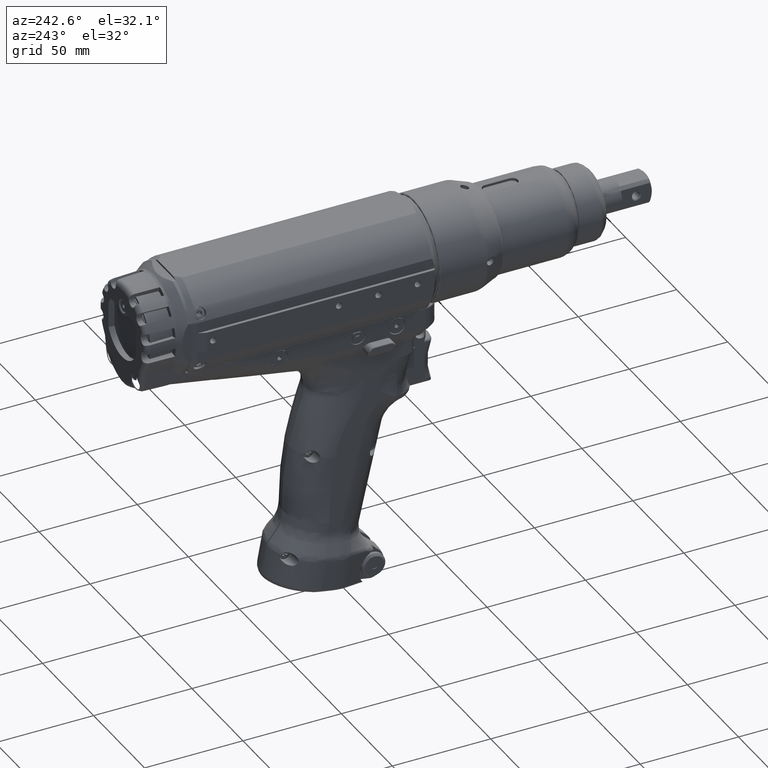
[diagram: clean part render]
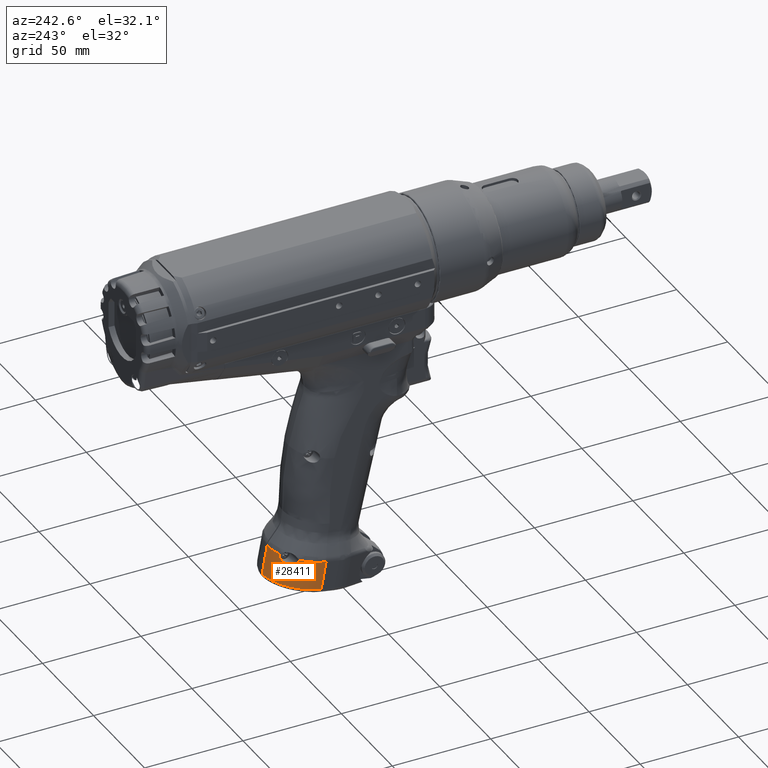
[diagram: same view with one face highlighted and labeled with its STEP entity id]
A machine part, auxiliary view. The second image highlights one B-rep face of the part: STEP entity #28411.
In plain terms, the highlighted cylindrical surface (partial cylindrical patch) has radius 20 mm, axis along (-0, -0.1736, 0.9848).
Its self-contained STEP definition (entity closure, byte-faithful):
#520=CYLINDRICAL_SURFACE('',#30795,20.0000000000148);
#1801=LINE('',#50949,#3528);
#1802=LINE('',#50951,#3529);
#2118=LINE('',#55126,#3845);
#3528=VECTOR('',#34477,10.);
#3529=VECTOR('',#34478,10.);
#3845=VECTOR('',#35842,10.);
#6295=FACE_OUTER_BOUND('',#7970,.T.);
#7970=EDGE_LOOP('',(#24027,#24028,#24029,#24030,#24031,#24032,#24033,#24034,
#24035,#24036));
#9320=CIRCLE('',#30588,20.0196581365117);
#9361=CIRCLE('',#30692,19.9999999999947);
#9369=CIRCLE('',#30725,2.46360441594832);
#10309=B_SPLINE_CURVE_WITH_KNOTS('',3,(#54586,#54587,#54588,#54589,#54590,
#54591,#54592),.UNSPECIFIED.,.F.,.F.,(4,1,1,1,4),(-6.22190471991814E-9,
7.11157267544012,14.2193277826116,21.3205622149425,26.5479907113652),
 .UNSPECIFIED.);
#10461=B_SPLINE_CURVE_WITH_KNOTS('',3,(#62251,#62252,#62253,#62254,#62255,
#62256,#62257,#62258,#62259,#62260,#62261,#62262,#62263,#62264),
 .UNSPECIFIED.,.F.,.F.,(4,2,2,2,2,2,4),(18.204317752021,19.3816624082443,
23.2579948898932,27.1343273715421,29.0724936123665,30.0415767327787,31.0106598531909),
 .UNSPECIFIED.);
#10499=B_SPLINE_CURVE_WITH_KNOTS('',3,(#65310,#65311,#65312,#65313,#65314,
#65315,#65316,#65317),.UNSPECIFIED.,.F.,.F.,(4,2,2,4),(3.53634865147476,
3.58792545413879,3.64664171666363,3.65805592977152),.UNSPECIFIED.);
#10500=B_SPLINE_CURVE_WITH_KNOTS('',3,(#65321,#65322,#65323,#65324,#65325,
#65326,#65327,#65328,#65329,#65330,#65331,#65332,#65333,#65334,#65335,#65336,
#65337,#65338,#65339,#65340,#65341,#65342,#65343),.UNSPECIFIED.,.F.,.F.,
(4,3,2,2,2,2,2,2,2,2,4),(2.34082247032961,2.3919503027592,2.48838343926638,
2.58481657577356,2.7181539801504,2.85149138452724,3.16099215680819,3.31574254294867,
3.47049292908914,3.52920919161397,3.53634865147476),.UNSPECIFIED.);
#12247=VERTEX_POINT('',#50935);
#12248=VERTEX_POINT('',#50948);
#12249=VERTEX_POINT('',#50950);
#12733=VERTEX_POINT('',#54550);
#12735=VERTEX_POINT('',#54584);
#12759=VERTEX_POINT('',#55124);
#12959=VERTEX_POINT('',#62221);
#12960=VERTEX_POINT('',#62222);
#12997=VERTEX_POINT('',#65307);
#12998=VERTEX_POINT('',#65309);
#15732=EDGE_CURVE('',#12247,#12248,#1801,.T.);
#15733=EDGE_CURVE('',#12248,#12249,#1802,.T.);
#16414=EDGE_CURVE('',#12733,#12247,#9320,.T.);
#16416=EDGE_CURVE('',#12735,#12733,#10309,.T.);
#16449=EDGE_CURVE('',#12759,#12735,#2118,.T.);
#16748=EDGE_CURVE('',#12960,#12759,#10461,.T.);
#16751=EDGE_CURVE('',#12249,#12959,#9361,.T.);
#16829=EDGE_CURVE('',#12960,#12997,#9369,.T.);
#16830=EDGE_CURVE('',#12998,#12959,#10499,.T.);
#16833=EDGE_CURVE('',#12997,#12998,#10500,.T.);
#24027=ORIENTED_EDGE('',*,*,#16833,.T.);
#24028=ORIENTED_EDGE('',*,*,#16830,.T.);
#24029=ORIENTED_EDGE('',*,*,#16751,.F.);
#24030=ORIENTED_EDGE('',*,*,#15733,.F.);
#24031=ORIENTED_EDGE('',*,*,#15732,.F.);
#24032=ORIENTED_EDGE('',*,*,#16414,.F.);
#24033=ORIENTED_EDGE('',*,*,#16416,.F.);
#24034=ORIENTED_EDGE('',*,*,#16449,.F.);
#24035=ORIENTED_EDGE('',*,*,#16748,.F.);
#24036=ORIENTED_EDGE('',*,*,#16829,.T.);
#28411=ADVANCED_FACE('',(#6295),#520,.T.);
#30588=AXIS2_PLACEMENT_3D('',#54561,#35800,#35801);
#30692=AXIS2_PLACEMENT_3D('',#62310,#36136,#36137);
#30725=AXIS2_PLACEMENT_3D('',#65308,#36234,#36235);
#30795=AXIS2_PLACEMENT_3D('',#67514,#36433,#36434);
#34477=DIRECTION('',(-3.09771669345662E-6,-0.173648223432203,0.984807744937683));
#34478=DIRECTION('',(3.74229273949814E-9,-0.173648177611656,0.984807753021954));
#35800=DIRECTION('center_axis',(-0.0314069828656533,0.173463118996506,-0.984339447434309));
#35801=DIRECTION('ref_axis',(-0.0149882941898975,0.984632810809403,0.173993042719679));
#35842=DIRECTION('',(5.42094089277341E-15,0.173648177666956,-0.984807753012203));
#36136=DIRECTION('center_axis',(2.93158424929176E-9,-0.173648200392972,
0.984807749004994));
#36137=DIRECTION('ref_axis',(-0.444337388045809,0.882249400393057,0.155564395318205));
#36234=DIRECTION('center_axis',(0.793010764590804,-0.600290553736258,-0.103851713217093));
#36235=DIRECTION('ref_axis',(-0.595194162353099,-0.79978199750699,0.078055528724893));
#36433=DIRECTION('center_axis',(-9.89006580476156E-14,-0.173648177667,0.984807753012196));
#36434=DIRECTION('ref_axis',(-0.713273835487287,0.69023744029969,0.121707483819963));
#50935=CARTESIAN_POINT('',(-0.299999769774573,88.5978533931343,-150.921511496123));
#50948=CARTESIAN_POINT('',(-0.29999995221977,88.5875749510545,-150.863219570182));
#50949=CARTESIAN_POINT('',(-0.299999768862284,88.5978533931728,-150.921511496261));
#50950=CARTESIAN_POINT('',(-0.299999897208065,86.0349466176605,-136.386544906012));
#50951=CARTESIAN_POINT('',(-0.29999995221977,88.5875749510544,-150.863219570182));
#54550=CARTESIAN_POINT('',(-1.92346855652392,88.4999096507592,-150.886971958665));
#54561=CARTESIAN_POINT('Origin',(6.07568689311846E-5,68.8858411307759,-154.40479272964));
#54584=CARTESIAN_POINT('',(-19.9999999999985,68.7964011842434,-153.784347302092));
#54586=CARTESIAN_POINT('Ctrl Pts',(-19.9999999999985,68.7964011842434,-153.784347302092));
#54587=CARTESIAN_POINT('Ctrl Pts',(-20.0015966372463,71.3902655929105,-153.326928068214));
#54588=CARTESIAN_POINT('Ctrl Pts',(-18.9460739121555,76.5813148232366,-152.445291487714));
#54589=CARTESIAN_POINT('Ctrl Pts',(-14.4510610482149,83.1834099321747,-151.424615722304));
#54590=CARTESIAN_POINT('Ctrl Pts',(-8.32826738068652,87.1979121970762,-150.912150623057));
#54591=CARTESIAN_POINT('Ctrl Pts',(-3.84935249370142,88.3057400254995,-150.859748675293));
#54592=CARTESIAN_POINT('Ctrl Pts',(-1.92346855568109,88.4999096508438,-150.886971958677));
#55124=CARTESIAN_POINT('',(-19.9999999999986,66.3410075075259,-139.859117783322));
#55126=CARTESIAN_POINT('',(-19.9999999999986,66.3410075075259,-139.859117783322));
#62221=CARTESIAN_POINT('',(-8.88674571903404,83.985995829514,-136.747830224391));
#62222=CARTESIAN_POINT('',(-15.9375588687646,78.2402513719597,-137.760959984143));
#62251=CARTESIAN_POINT('Ctrl Pts',(-15.9375588687646,78.2402513719597,-137.760959984143));
#62252=CARTESIAN_POINT('Ctrl Pts',(-16.1777605379761,77.9282645359822,-137.815971682595));
#62253=CARTESIAN_POINT('Ctrl Pts',(-16.4085289513359,77.6092232629603,-137.87222726865));
#62254=CARTESIAN_POINT('Ctrl Pts',(-17.3567006774221,76.2117481552927,-138.11863984219));
#62255=CARTESIAN_POINT('Ctrl Pts',(-17.976694575597,75.069446335269,-138.320058478843));
#62256=CARTESIAN_POINT('Ctrl Pts',(-18.9785814049454,72.6874031926008,-138.740076965541));
#62257=CARTESIAN_POINT('Ctrl Pts',(-19.3604175317482,71.4479031216446,-138.958634276403));
#62258=CARTESIAN_POINT('Ctrl Pts',(-19.743374939977,69.5513841679421,-139.293041745912));
#62259=CARTESIAN_POINT('Ctrl Pts',(-19.8395468685749,68.9130796200986,-139.405592062437));
#62260=CARTESIAN_POINT('Ctrl Pts',(-19.9357732560576,67.9507826029507,-139.575270994222));
#62261=CARTESIAN_POINT('Ctrl Pts',(-19.959846760122,67.6294210769262,-139.631935703216));
#62262=CARTESIAN_POINT('Ctrl Pts',(-19.9919678897407,66.9855370343859,-139.745469835132));
#62263=CARTESIAN_POINT('Ctrl Pts',(-19.9999995141943,66.6633134254282,-139.802286552589));
#62264=CARTESIAN_POINT('Ctrl Pts',(-19.9999999999986,66.3410075075259,-139.859117783322));
#62310=CARTESIAN_POINT('Origin',(1.10774198936695E-12,66.3410075782889,
-139.859118184574));
#65307=CARTESIAN_POINT('',(-15.9657156323605,78.2346777297236,-137.943760421995));
#65308=CARTESIAN_POINT('Origin',(-14.4993925214864,80.2050243879211,-138.136058386123));
#65309=CARTESIAN_POINT('',(-8.81128171351233,84.2346775323796,-137.943760575436));
#65310=CARTESIAN_POINT('Ctrl Pts',(-8.81128171351234,84.2346775323796,-137.943760575394));
#65311=CARTESIAN_POINT('Ctrl Pts',(-8.75032631469201,84.2346775323747,-137.771490606694));
#65312=CARTESIAN_POINT('Ctrl Pts',(-8.71779788708376,84.2189548507245,-137.592126826275));
#65313=CARTESIAN_POINT('Ctrl Pts',(-8.7177978870838,84.1551142181266,-137.23006860727));
#65314=CARTESIAN_POINT('Ctrl Pts',(-8.76059712974739,84.0992291674671,-137.031667106607));
#65315=CARTESIAN_POINT('Ctrl Pts',(-8.85315656373196,84.0149117169113,-136.816055968167));
#65316=CARTESIAN_POINT('Ctrl Pts',(-8.86943512293767,84.0006661001159,-136.781580937676));
#65317=CARTESIAN_POINT('Ctrl Pts',(-8.88674745519374,83.985995883523,-136.747831091495));
#65321=CARTESIAN_POINT('Ctrl Pts',(-15.965715776513,78.2346775323803,-137.94376040311));
#65322=CARTESIAN_POINT('Ctrl Pts',(-15.9889167991206,78.2346775222053,-138.120851835003));
#65323=CARTESIAN_POINT('Ctrl Pts',(-15.9999999999975,78.2506600902455,-138.296868155908));
#65324=CARTESIAN_POINT('Ctrl Pts',(-15.9999999999975,78.2802542733437,-138.46470510848));
#65325=CARTESIAN_POINT('Ctrl Pts',(-15.9999999999975,78.3360724014144,-138.781265443412));
#65326=CARTESIAN_POINT('Ctrl Pts',(-15.9589314182289,78.449778470397,-139.107493909969));
#65327=CARTESIAN_POINT('Ctrl Pts',(-15.7936489393898,78.7711277986827,-139.687566619762));
#65328=CARTESIAN_POINT('Ctrl Pts',(-15.6692056291313,78.9781846007314,-139.941670181718));
#65329=CARTESIAN_POINT('Ctrl Pts',(-15.3328915668153,79.4816057769283,-140.410781621146));
#65330=CARTESIAN_POINT('Ctrl Pts',(-15.075400091516,79.8279926008958,-140.619829610294));
#65331=CARTESIAN_POINT('Ctrl Pts',(-14.4882269462577,80.5286664781743,-140.883429753227));
#65332=CARTESIAN_POINT('Ctrl Pts',(-14.1582830283464,80.8823038736046,-140.93912289721));
#65333=CARTESIAN_POINT('Ctrl Pts',(-13.101852303936,81.9131761549843,-140.953549903533));
#65334=CARTESIAN_POINT('Ctrl Pts',(-12.2543432435958,82.5739449419424,-140.708275056165));
#65335=CARTESIAN_POINT('Ctrl Pts',(-10.9993044976134,83.3518704568055,-140.09471679477));
#65336=CARTESIAN_POINT('Ctrl Pts',(-10.5866531190445,83.5756349428975,-139.850424204311));
#65337=CARTESIAN_POINT('Ctrl Pts',(-9.80914769839672,83.9427671504381,-139.278566382468));
#65338=CARTESIAN_POINT('Ctrl Pts',(-9.44060480915722,84.0890285943691,-138.9579047686));
#65339=CARTESIAN_POINT('Ctrl Pts',(-9.02614094454492,84.2053649303794,-138.391338986803));
#65340=CARTESIAN_POINT('Ctrl Pts',(-8.91558663968431,84.2292384252944,-138.2086676616));
#65341=CARTESIAN_POINT('Ctrl Pts',(-8.82866910014593,84.2343929726787,-137.991328853768));
#65342=CARTESIAN_POINT('Ctrl Pts',(-8.81971939480892,84.2346775323802,-137.967606848587));
#65343=CARTESIAN_POINT('Ctrl Pts',(-8.81128171351234,84.2346775323796,-137.943760575394));
#67514=CARTESIAN_POINT('Origin',(1.40589792950261E-11,66.3410074979859,
-139.85911772924));